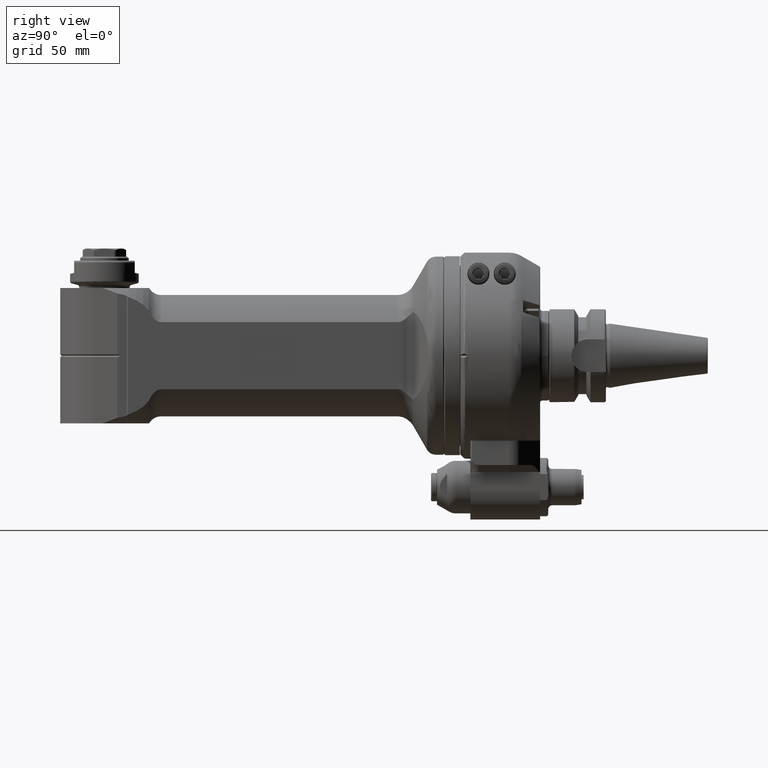
[diagram: clean part render]
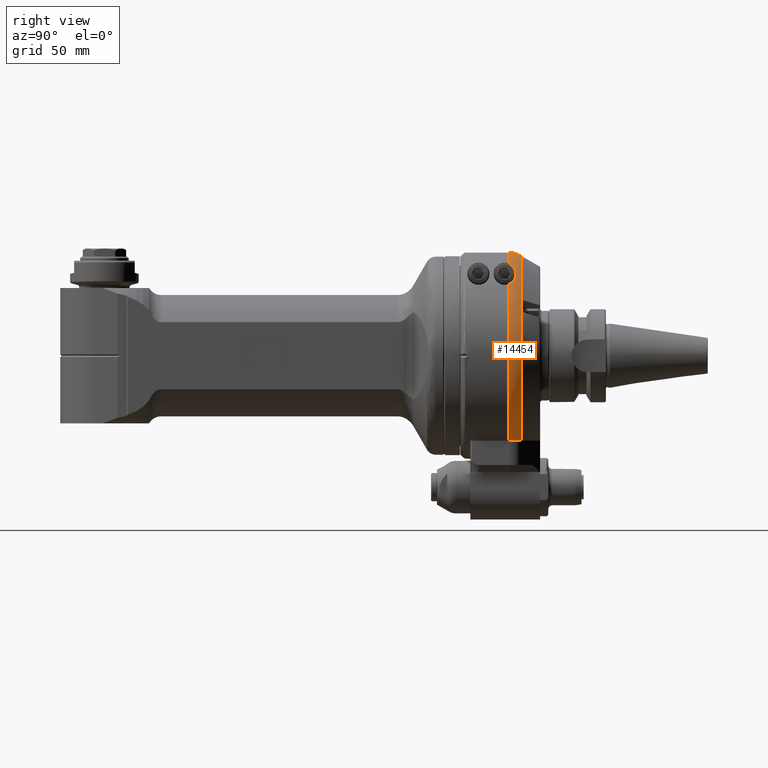
[diagram: same view with one face highlighted and labeled with its STEP entity id]
A machine part, right view. The second image highlights one B-rep face of the part: STEP entity #14454.
In plain terms, the highlighted toroidal blend (fillet) surface has major radius 39 mm and minor (blend) radius 12 mm.
Its self-contained STEP definition (entity closure, byte-faithful):
#122=B_SPLINE_CURVE_WITH_KNOTS('',3,(#23218,#23219,#23220,#23221,#23222,
#23223,#23224,#23225,#23226,#23227,#23228,#23229),.UNSPECIFIED.,.F.,.F.,
(4,2,2,2,2,4),(9.64307894084854,9.78637133350369,9.92966372615884,10.1071835186264,
10.2847033110939,10.2927281694849),.UNSPECIFIED.);
#135=B_SPLINE_CURVE_WITH_KNOTS('',3,(#23458,#23459,#23460,#23461,#23462,
#23463,#23464,#23465),.UNSPECIFIED.,.F.,.F.,(4,2,2,4),(-0.594227847708128,
-0.444215565867735,-0.222107782933867,0.),.UNSPECIFIED.);
#136=B_SPLINE_CURVE_WITH_KNOTS('',3,(#23469,#23470,#23471,#23472,#23473,
#23474,#23475,#23476,#23477,#23478,#23479,#23480,#23481,#23482,#23483,#23484,
#23485,#23486,#23487,#23488),.UNSPECIFIED.,.F.,.F.,(4,2,2,2,2,2,2,2,2,4),
(-4.91913814154154,-4.58748623361041,-4.32306617361602,-4.16790956586067,
-4.04086273706386,-3.9030892624229,-3.70723915094664,-3.37949336782179,
-3.16249646482788,-3.12273254152871),.UNSPECIFIED.);
#244=TOROIDAL_SURFACE('',#15639,39.,12.);
#1283=CIRCLE('',#15637,49.39230484541);
#1285=CIRCLE('',#15640,51.);
#1286=CIRCLE('',#15641,51.);
#2158=FACE_OUTER_BOUND('',#3065,.T.);
#3065=EDGE_LOOP('',(#11197,#11198,#11199,#11200,#11201,#11202));
#6455=VERTEX_POINT('',#23213);
#6456=VERTEX_POINT('',#23217);
#6501=VERTEX_POINT('',#23443);
#6502=VERTEX_POINT('',#23457);
#6503=VERTEX_POINT('',#23466);
#6504=VERTEX_POINT('',#23468);
#8158=EDGE_CURVE('',#6456,#6455,#122,.T.);
#8216=EDGE_CURVE('',#6455,#6501,#1283,.T.);
#8219=EDGE_CURVE('',#6501,#6502,#135,.T.);
#8220=EDGE_CURVE('',#6502,#6503,#1285,.T.);
#8221=EDGE_CURVE('',#6503,#6504,#136,.T.);
#8222=EDGE_CURVE('',#6504,#6456,#1286,.T.);
#11197=ORIENTED_EDGE('',*,*,#8216,.T.);
#11198=ORIENTED_EDGE('',*,*,#8219,.T.);
#11199=ORIENTED_EDGE('',*,*,#8220,.T.);
#11200=ORIENTED_EDGE('',*,*,#8221,.T.);
#11201=ORIENTED_EDGE('',*,*,#8222,.T.);
#11202=ORIENTED_EDGE('',*,*,#8158,.T.);
#14454=ADVANCED_FACE('',(#2158),#244,.T.);
#15637=AXIS2_PLACEMENT_3D('',#23444,#18308,#18309);
#15639=AXIS2_PLACEMENT_3D('',#23456,#18312,#18313);
#15640=AXIS2_PLACEMENT_3D('',#23467,#18314,#18315);
#15641=AXIS2_PLACEMENT_3D('',#23489,#18316,#18317);
#18308=DIRECTION('center_axis',(0.,-1.,0.));
#18309=DIRECTION('ref_axis',(0.526241939180605,0.,-0.850334887822108));
#18312=DIRECTION('center_axis',(0.,-1.,0.));
#18313=DIRECTION('ref_axis',(0.,0.,1.));
#18314=DIRECTION('center_axis',(0.,1.,0.));
#18315=DIRECTION('ref_axis',(0.0294117647058804,0.,0.999567380468613));
#18316=DIRECTION('center_axis',(0.,1.,0.));
#18317=DIRECTION('ref_axis',(0.719066469693323,0.,0.694941301235422));
#23213=CARTESIAN_POINT('',(25.99230228245,30.16025403784,-42.));
#23217=CARTESIAN_POINT('',(28.93095228298,24.16025403784,-42.));
#23218=CARTESIAN_POINT('Ctrl Pts',(28.9309522829789,24.16025403784,-42.));
#23219=CARTESIAN_POINT('Ctrl Pts',(28.9309522829789,24.6378953466905,-42.));
#23220=CARTESIAN_POINT('Ctrl Pts',(28.87705146055,25.1583204821385,-42.));
#23221=CARTESIAN_POINT('Ctrl Pts',(28.6499045087982,26.1732442267493,-42.));
#23222=CARTESIAN_POINT('Ctrl Pts',(28.4771000006664,26.667841623344,-42.));
#23223=CARTESIAN_POINT('Ctrl Pts',(28.0359301462016,27.6419719048386,-42.));
#23224=CARTESIAN_POINT('Ctrl Pts',(27.7052126152872,28.1987456633247,-42.));
#23225=CARTESIAN_POINT('Ctrl Pts',(26.9298007026917,29.2294889281588,-42.));
#23226=CARTESIAN_POINT('Ctrl Pts',(26.4861630058264,29.7042529379174,-42.));
#23227=CARTESIAN_POINT('Ctrl Pts',(26.0319319853753,30.124008073782,-42.));
#23228=CARTESIAN_POINT('Ctrl Pts',(26.0121730475889,30.1421422770287,-42.));
#23229=CARTESIAN_POINT('Ctrl Pts',(25.9923022824498,30.1602540378398,-42.));
#23443=CARTESIAN_POINT('',(1.50000009631114,30.160265019228,49.3695164173488));
#23444=CARTESIAN_POINT('Origin',(0.,30.16025403784,0.));
#23456=CARTESIAN_POINT('Origin',(0.,24.16025403784,0.));
#23457=CARTESIAN_POINT('',(1.49999997309681,24.16025403784,50.9779364046901));
#23458=CARTESIAN_POINT('Ctrl Pts',(1.5,30.1602650207791,49.3695164200341));
#23459=CARTESIAN_POINT('Ctrl Pts',(1.5,29.6921068018795,49.6399330824922));
#23460=CARTESIAN_POINT('Ctrl Pts',(1.5,29.2135929895522,49.8730331950833));
#23461=CARTESIAN_POINT('Ctrl Pts',(1.5,28.0676526495586,50.3478104405525));
#23462=CARTESIAN_POINT('Ctrl Pts',(1.5,27.2926978584861,50.5898074567293));
#23463=CARTESIAN_POINT('Ctrl Pts',(1.5,25.7091782447219,50.9048707091654));
#23464=CARTESIAN_POINT('Ctrl Pts',(1.5,24.9006133142862,50.9779364038993));
#23465=CARTESIAN_POINT('Ctrl Pts',(1.5,24.16025403784,50.9779364038993));
#23466=CARTESIAN_POINT('',(22.92311419183,24.16025403784,45.55799420242));
#23467=CARTESIAN_POINT('Origin',(0.,24.16025403784,0.));
#23468=CARTESIAN_POINT('',(36.67238995436,24.16025403784,35.44200636301));
#23469=CARTESIAN_POINT('Ctrl Pts',(22.9231141918288,24.1602540378401,45.557994202427));
#23470=CARTESIAN_POINT('Ctrl Pts',(23.6033652372661,24.9616584296896,45.2157167895018));
#23471=CARTESIAN_POINT('Ctrl Pts',(24.4448704985885,25.6827822760539,44.6814907619108));
#23472=CARTESIAN_POINT('Ctrl Pts',(26.229944960831,26.7017967850646,43.4411228861407));
#23473=CARTESIAN_POINT('Ctrl Pts',(27.0513190734694,27.017439946092,42.8411805308406));
#23474=CARTESIAN_POINT('Ctrl Pts',(28.3520751567664,27.3366357362948,41.8820460608678));
#23475=CARTESIAN_POINT('Ctrl Pts',(28.8325131955304,27.4152527012304,41.5253868440944));
#23476=CARTESIAN_POINT('Ctrl Pts',(29.6951019829571,27.4943197869381,40.8836475176328));
#23477=CARTESIAN_POINT('Ctrl Pts',(30.0799800678408,27.5064010912501,40.5967462063334));
#23478=CARTESIAN_POINT('Ctrl Pts',(30.8685110156523,27.4865287146445,40.0082059688809));
#23479=CARTESIAN_POINT('Ctrl Pts',(31.2736731977293,27.4506920741766,39.7053690405587));
#23480=CARTESIAN_POINT('Ctrl Pts',(32.231810616676,27.3053954429621,38.9875040368589));
#23481=CARTESIAN_POINT('Ctrl Pts',(32.78568178327,27.1695827622786,38.5711124714481));
#23482=CARTESIAN_POINT('Ctrl Pts',(34.1957951435625,26.6693918571835,37.5010988998362));
#23483=CARTESIAN_POINT('Ctrl Pts',(34.9586715043522,26.2291580976205,36.9109139220896));
#23484=CARTESIAN_POINT('Ctrl Pts',(35.9455225149864,25.3439776763065,36.1074399455237));
#23485=CARTESIAN_POINT('Ctrl Pts',(36.2959151189006,24.922156672962,35.8088224548353));
#23486=CARTESIAN_POINT('Ctrl Pts',(36.5916673908735,24.344735157116,35.5238409690922));
#23487=CARTESIAN_POINT('Ctrl Pts',(36.6339424756766,24.2533996191354,35.4817885614682));
#23488=CARTESIAN_POINT('Ctrl Pts',(36.6723899543831,24.1602540378614,35.4420063629821));
#23489=CARTESIAN_POINT('Origin',(0.,24.16025403784,0.));